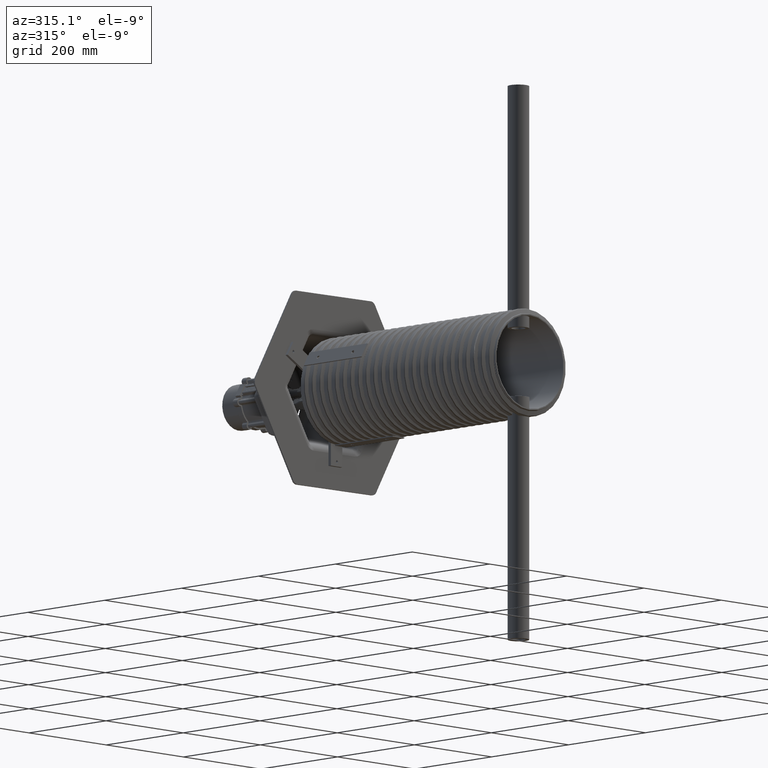
[diagram: clean part render]
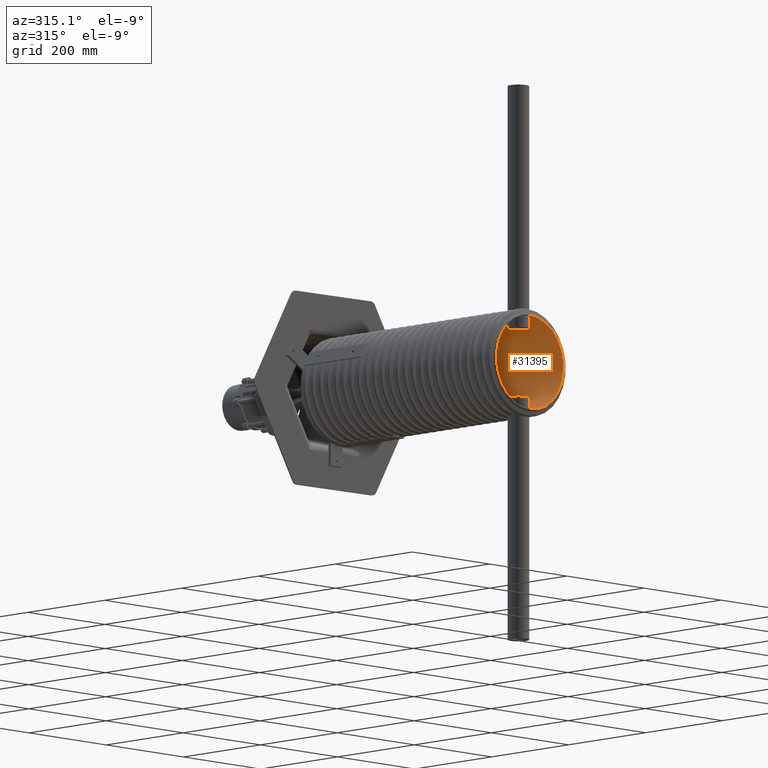
[diagram: same view with one face highlighted and labeled with its STEP entity id]
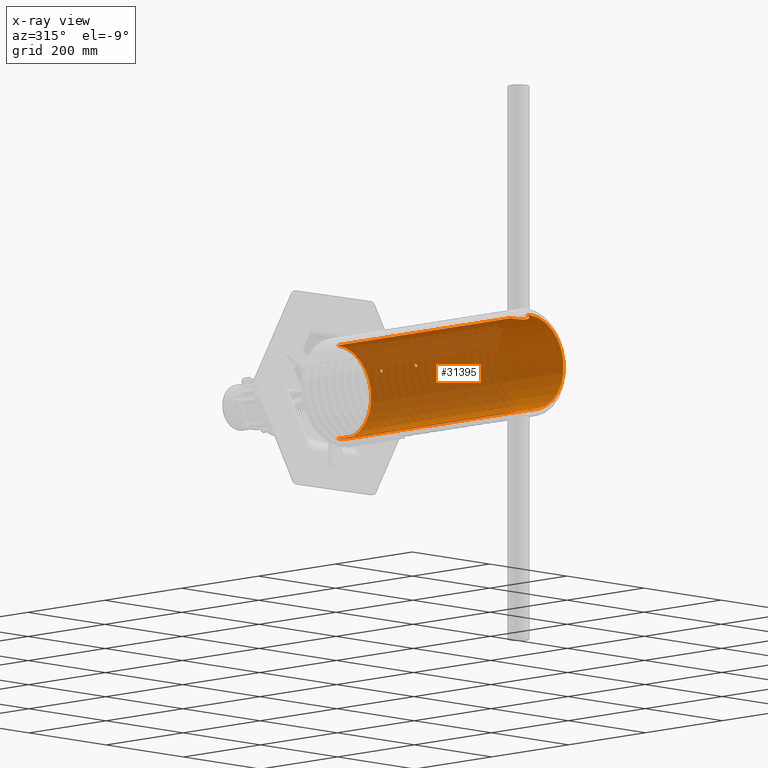
[diagram: x-ray of the same camera — body ghosted, the highlighted face saturated]
A machine part, auxiliary view. The second image highlights one B-rep face of the part: STEP entity #31395.
The next image is the same camera in x-ray: the body ghosted, the highlighted face saturated — about 63% of this face is hidden behind the body in this view.
In plain terms, the highlighted cylindrical surface (partial cylindrical patch) has radius 87 mm, axis along (0, 1, 0).
Its self-contained STEP definition (entity closure, byte-faithful):
#629 = DIRECTION ( 'NONE',  ( -0.0000000000000000000, 1.000000000000000000, -0.0000000000000000000 ) ) ;
#848 = CARTESIAN_POINT ( 'NONE',  ( 76.79940238806720700, -38.00000000000000700, 40.87605402721430200 ) ) ;
#941 = CARTESIAN_POINT ( 'NONE',  ( 20.00000000000000700, -470.0000000000000000, 84.66994744299775300 ) ) ;
#1047 = CARTESIAN_POINT ( 'NONE',  ( 20.00000000000001400, -471.3097727820329500, 84.66994744299775300 ) ) ;
#1083 = ORIENTED_EDGE ( 'NONE', *, *, #26051, .T. ) ;
#1098 = CARTESIAN_POINT ( 'NONE',  ( 19.87258180282035600, -472.6109044968400800, 84.70035518799339500 ) ) ;
#1160 = CARTESIAN_POINT ( 'NONE',  ( 0.0000000000000000000, 0.0000000000000000000, 87.00000000000002800 ) ) ;
#1164 = VERTEX_POINT ( 'NONE', #12173 ) ;
#1184 = CARTESIAN_POINT ( 'NONE',  ( 19.48683228377942800, -474.5494450204614600, 84.78962664538839500 ) ) ;
#1245 = CARTESIAN_POINT ( 'NONE',  ( 19.32495440041246200, -475.1938655345061900, 84.82679073922753300 ) ) ;
#1277 = ORIENTED_EDGE ( 'NONE', *, *, #37150, .T. ) ;
#1296 = CARTESIAN_POINT ( 'NONE',  ( 74.12288359793724600, -129.8289433191464800, 45.55008222552945800 ) ) ;
#1357 = CARTESIAN_POINT ( 'NONE',  ( 18.94318157767786600, -476.4487187474474000, 84.91286216710545900 ) ) ;
#1418 = CARTESIAN_POINT ( 'NONE',  ( 18.72266412666035500, -477.0629929471797900, 84.96191534850493100 ) ) ;
#1464 = CARTESIAN_POINT ( 'NONE',  ( 75.82233604326457100, -130.8472839878834000, 42.66153242702481700 ) ) ;
#1516 = CARTESIAN_POINT ( 'NONE',  ( 18.22357876429281400, -478.2659057817798500, 85.07036139988984800 ) ) ;
#1565 = CARTESIAN_POINT ( 'NONE',  ( 17.94500937893240400, -478.8545435671164200, 85.12975672196815000 ) ) ;
#1613 = CARTESIAN_POINT ( 'NONE',  ( 76.79940238806719300, -128.0000000000000000, 40.87605402721430200 ) ) ;
#1670 = CARTESIAN_POINT ( 'NONE',  ( 17.32928541080693600, -480.0061066625700600, 85.25722672185770500 ) ) ;
#1691 = EDGE_CURVE ( 'NONE', #43861, #23992, #17466, .T. ) ;
#1826 = CARTESIAN_POINT ( 'NONE',  ( 16.99053917262399000, -480.5713675539277600, 85.32561285226178400 ) ) ;
#1833 = B_SPLINE_CURVE_WITH_KNOTS ( 'NONE', 3,
 ( #20343, #41577, #45125, #23936, #2290, #27501, #5935, #31032, #9617, #34559, #13293, #38116, #16908, #41732, #20504, #45262, #24093, #2440, #27643, #6078, #31194, #9757, #34710, #13442, #38282, #17046, #41885, #20665, #45420, #24236, #2598, #27790 ),
 .UNSPECIFIED., .F., .F.,
 ( 4, 2, 2, 2, 2, 2, 2, 2, 2, 2, 2, 2, 2, 2, 2, 4 ),
 ( 0.009380065662061867100, 0.009966186848062500600, 0.01055230803406313400, 0.01113842922006376800, 0.01172455040606439900, 0.01231067159206503300, 0.01289679277806566600, 0.01348291396406630000, 0.01406903515006693200, 0.01465515633606756500, 0.01524127752206819900, 0.01582739870806883200, 0.01641351989406946600, 0.01699964108007009900, 0.01758576226607073300, 0.01875800463807199600 ),
 .UNSPECIFIED. ) ;
#1883 = CARTESIAN_POINT ( 'NONE',  ( 15.89413165341288400, -482.2108768043417500, 85.53906183110785800 ) ) ;
#1914 = CARTESIAN_POINT ( 'NONE',  ( 0.7763860699767505300, -35.09562983045843500, -86.99674659567382700 ) ) ;
#2049 = CARTESIAN_POINT ( 'NONE',  ( 15.06791242405785900, -483.2154688746402900, 85.69028792020151300 ) ) ;
#2071 = CARTESIAN_POINT ( 'NONE',  ( 18.21962737294205300, -461.7249487878594900, 85.07121474615111400 ) ) ;
#2104 = CARTESIAN_POINT ( 'NONE',  ( 1.830979428494086300, -130.3846284622218000, -86.98088549283956200 ) ) ;
#2220 = CARTESIAN_POINT ( 'NONE',  ( 10.02251858750657700, -452.6800260905570200, 86.42273495285059000 ) ) ;
#2256 = CARTESIAN_POINT ( 'NONE',  ( 0.7763860699767515200, -125.0956298304583800, -86.99674659567377000 ) ) ;
#2284 = CARTESIAN_POINT ( 'NONE',  ( 13.68947363335681500, -484.5952376561857600, 85.91749047084744000 ) ) ;
#2290 = CARTESIAN_POINT ( 'NONE',  ( 76.72725056532678400, -37.03336390422353500, 41.01139606618973900 ) ) ;
#2337 = CARTESIAN_POINT ( 'NONE',  ( 13.20663325987711500, -485.0338113588372300, 85.99329881591437200 ) ) ;
#2440 = CARTESIAN_POINT ( 'NONE',  ( 75.24654654386195300, -34.99983603885795700, 43.66916959959585400 ) ) ;
#2479 = ORIENTED_EDGE ( 'NONE', *, *, #3670, .T. ) ;
#2488 = CARTESIAN_POINT ( 'NONE',  ( 12.44619435417209300, -485.6588603546577500, 86.10550445194653000 ) ) ;
#2590 = CARTESIAN_POINT ( 'NONE',  ( 12.18609127885416900, -485.8621227960242100, 86.14273024893560700 ) ) ;
#2598 = CARTESIAN_POINT ( 'NONE',  ( 73.79940238806723600, -37.60362431582526500, 46.07220644992094100 ) ) ;
#2648 = CARTESIAN_POINT ( 'NONE',  ( 11.65896377244182100, -486.2535018997630800, 86.21565611390043700 ) ) ;
#2789 = CARTESIAN_POINT ( 'NONE',  ( 11.39145300411179000, -486.4420625262272900, 86.25143293087305100 ) ) ;
#2896 = CARTESIAN_POINT ( 'NONE',  ( 10.03442699100647300, -487.3498190636772200, 86.42631787680581100 ) ) ;
#3126 = CARTESIAN_POINT ( 'NONE',  ( 8.887061375591693800, -487.9649167705670200, 86.55343207753504900 ) ) ;
#3219 = CARTESIAN_POINT ( 'NONE',  ( 7.071523045145731600, -488.7195909527612800, 86.71425879228559100 ) ) ;
#3317 = CARTESIAN_POINT ( 'NONE',  ( 6.446876492459776600, -488.9438862687932800, 86.76310259039173900 ) ) ;
#3420 = CARTESIAN_POINT ( 'NONE',  ( 5.187658729119729800, -489.3266976067870400, 86.84748922409937700 ) ) ;
#3470 = CARTESIAN_POINT ( 'NONE',  ( 4.552415771729019200, -489.4859548076487400, 86.88317981998778800 ) ) ;
#3522 = CARTESIAN_POINT ( 'NONE',  ( -4.534212954078323500E-017, -490.0000000000000000, 87.00000000000002800 ) ) ;
#3670 = EDGE_CURVE ( 'NONE', #33598, #29870, #28038, .T. ) ;
#3834 = CARTESIAN_POINT ( 'NONE',  ( 1.065442721291840700E-014, -131.0000000000000000, -87.00000000000002800 ) ) ;
#4093 = DIRECTION ( 'NONE',  ( -0.0000000000000000000, 1.000000000000000000, -0.0000000000000000000 ) ) ;
#4314 = B_SPLINE_CURVE_WITH_KNOTS ( 'NONE', 3,
 ( #11746, #11956, #11686, #11637, #11530, #11475, #11366, #11351, #11313, #11303, #11253, #11199, #11158, #11149, #11095, #11040, #10889, #10839, #10831, #10774, #10679, #10673, #10622, #10584, #10571, #10540 ),
 .UNSPECIFIED., .F., .F.,
 ( 4, 2, 2, 2, 2, 2, 2, 2, 2, 2, 2, 2, 4 ),
 ( 0.09410789661966965900, 0.09802708953459228500, 0.09998668599205359800, 0.1019462824495149100, 0.1058654753644375400, 0.1078250718218988500, 0.1097846682793601600, 0.1117442647368214700, 0.1137038611942827900, 0.1176230541092052700, 0.1195826505666665300, 0.1215422470241277800, 0.1254614399390502600 ),
 .UNSPECIFIED. ) ;
#4361 = CARTESIAN_POINT ( 'NONE',  ( 2.630089170235748100, -489.8693313288165400, 86.96969777411382600 ) ) ;
#4550 = CARTESIAN_POINT ( 'NONE',  ( 1.326567216152748000, -490.0000000000000600, 87.00000000000004300 ) ) ;
#4729 = CARTESIAN_POINT ( 'NONE',  ( 0.0000000000000000000, 0.0000000000000000000, 87.00000000000000000 ) ) ;
#4788 = DIRECTION ( 'NONE',  ( -0.0000000000000000000, 1.000000000000000000, -0.0000000000000000000 ) ) ;
#4924 = CARTESIAN_POINT ( 'NONE',  ( 74.33347922500526300, -130.2600676431072800, 45.20567482684608500 ) ) ;
#5078 = CARTESIAN_POINT ( 'NONE',  ( 76.08514325843393100, -130.6030418414441100, 42.19096358836850400 ) ) ;
#5298 = CARTESIAN_POINT ( 'NONE',  ( 1.065442716031716200E-014, -125.0000000000000000, -87.00000000000002800 ) ) ;
#5530 = CARTESIAN_POINT ( 'NONE',  ( 1.329955233623715500, -35.30371981811131100, -86.99002392546769600 ) ) ;
#5568 = CARTESIAN_POINT ( 'NONE',  ( 3.000000000000000900, -128.0000000000000000, -86.94826047713664300 ) ) ;
#5678 = CARTESIAN_POINT ( 'NONE',  ( 17.31739205085583700, -459.9732355937658200, 85.25964811136300600 ) ) ;
#5722 = CARTESIAN_POINT ( 'NONE',  ( 1.328175558697991100, -130.6970630186229700, -86.99004865439181300 ) ) ;
#5854 = CARTESIAN_POINT ( 'NONE',  ( 8.857833680266107700, -452.0654873304653700, 86.54841319088986000 ) ) ;
#5898 = CARTESIAN_POINT ( 'NONE',  ( 1.329955233623707500, -125.3037198181112800, -86.99002392546766800 ) ) ;
#5935 = CARTESIAN_POINT ( 'NONE',  ( 76.61277069364122400, -36.49821063293249800, 41.22493674064099900 ) ) ;
#5970 = LINE ( 'NONE', #33416, #14557 ) ;
#6078 = CARTESIAN_POINT ( 'NONE',  ( 74.95421263033215100, -35.09509054505110700, 44.16902478899425700 ) ) ;
#6155 = EDGE_CURVE ( 'NONE', #33293, #18730, #42826, .T. ) ;
#6293 = CARTESIAN_POINT ( 'NONE',  ( 73.79940238806726400, -128.0000000000000000, 46.07220644992096200 ) ) ;
#6335 = CARTESIAN_POINT ( 'NONE',  ( 73.79940238806725000, -127.6036243158252600, 46.07220644992096200 ) ) ;
#6386 = CARTESIAN_POINT ( 'NONE',  ( 73.84169468340766700, -127.2098632413372600, 46.00463697864077500 ) ) ;
#6459 = CARTESIAN_POINT ( 'NONE',  ( 73.96033536175043800, -126.6685945314221700, 45.81347419145316000 ) ) ;
#6507 = CARTESIAN_POINT ( 'NONE',  ( 74.00964267075109100, -126.4936293912780100, 45.73384765430935100 ) ) ;
#6561 = CARTESIAN_POINT ( 'NONE',  ( 74.12471874090687200, -126.1664020456541100, 45.54709761446144300 ) ) ;
#6599 = CARTESIAN_POINT ( 'NONE',  ( 74.18973372377777800, -126.0155304745128900, 45.44119956019824300 ) ) ;
#6616 = CARTESIAN_POINT ( 'NONE',  ( 74.33413251984855200, -125.7388231767254900, 45.20460098260358000 ) ) ;
#6659 = CARTESIAN_POINT ( 'NONE',  ( 74.41436665575851400, -125.6122360639628500, 45.07248172008696900 ) ) ;
#6697 = CARTESIAN_POINT ( 'NONE',  ( 74.58274914739598700, -125.3949918919166300, 44.79330421839682700 ) ) ;
#6711 = CARTESIAN_POINT ( 'NONE',  ( 74.67139823330761300, -125.3029380678984400, 44.64544082383363100 ) ) ;
#6748 = CARTESIAN_POINT ( 'NONE',  ( 74.85747038605444500, -125.1524743547578400, 44.33274442071717700 ) ) ;
#6808 = CARTESIAN_POINT ( 'NONE',  ( 74.95421263033217900, -125.0950905450511400, 44.16902478899427800 ) ) ;
#6852 = CARTESIAN_POINT ( 'NONE',  ( 75.14811365699012000, -125.0191828146252400, 43.83831378645773900 ) ) ;
#6861 = CARTESIAN_POINT ( 'NONE',  ( 75.24654654386196700, -124.9998360388579400, 43.66916959959588200 ) ) ;
#6914 = CARTESIAN_POINT ( 'NONE',  ( 75.44437575426296400, -125.0001660479804400, 43.32649659671815800 ) ) ;
#6929 = CARTESIAN_POINT ( 'NONE',  ( 75.54115247530934600, -125.0197078249870400, 43.15751435866254600 ) ) ;
#6976 = CARTESIAN_POINT ( 'NONE',  ( 75.73064473570791200, -125.0961914640976700, 42.82413117425846800 ) ) ;
#7026 = CARTESIAN_POINT ( 'NONE',  ( 75.82434590255604700, -125.1541199586312700, 42.65795904007652000 ) ) ;
#7044 = B_SPLINE_CURVE_WITH_KNOTS ( 'NONE', 3,
 ( #37753, #12901, #16508, #41338, #20130, #44887, #23707, #2071, #27279, #5678, #30807, #9388, #34326, #13043, #37898, #16675, #41489, #20272, #45047, #23856, #2220, #27429, #5854, #30951, #9540, #34481, #13204, #38044, #16830, #41654, #20416, #45194 ),
 .UNSPECIFIED., .F., .F.,
 ( 4, 2, 2, 2, 2, 2, 2, 2, 2, 2, 2, 2, 2, 2, 2, 4 ),
 ( 0.03137786550792306300, 0.03333796585246948100, 0.03529806619701590000, 0.03921826688610874400, 0.04117836723065515500, 0.04313846757520157400, 0.04509856791974799200, 0.04607861809202114200, 0.04705866826429428600, 0.05097886895338687300, 0.05293896929793311800, 0.05391901947020624100, 0.05489906964247936300, 0.05881927033157191600, 0.06077937067611817500, 0.06273947102066443300 ),
 .UNSPECIFIED. ) ;
#7091 = CARTESIAN_POINT ( 'NONE',  ( 76.00156117046432800, -125.3047737001057000, 42.34141708383746300 ) ) ;
#7101 = CARTESIAN_POINT ( 'NONE',  ( 76.08520940629190900, -125.3969834340961100, 42.19084642360594000 ) ) ;
#7205 = CARTESIAN_POINT ( 'NONE',  ( 76.24289715199158500, -125.6150706057248800, 41.90521741037056800 ) ) ;
#7247 = CARTESIAN_POINT ( 'NONE',  ( 76.31701063034780900, -125.7417889277396300, 41.77000115104774400 ) ) ;
#7261 = CARTESIAN_POINT ( 'NONE',  ( 76.44935817606007300, -126.0185571830292600, 41.52727708602657200 ) ) ;
#7300 = CARTESIAN_POINT ( 'NONE',  ( 76.50852754800529000, -126.1696861162702400, 41.41807884321074300 ) ) ;
#7352 = CARTESIAN_POINT ( 'NONE',  ( 76.61277069364122400, -126.4982106329325100, 41.22493674064100600 ) ) ;
#7388 = CARTESIAN_POINT ( 'NONE',  ( 76.65666974050581900, -126.6723235719023400, 41.14317161944786200 ) ) ;
#7404 = CARTESIAN_POINT ( 'NONE',  ( 76.72725056532677000, -127.0333639042235300, 41.01139606618975400 ) ) ;
#7453 = CARTESIAN_POINT ( 'NONE',  ( 76.75438500250982100, -127.2229834013205200, 40.96054022181822100 ) ) ;
#7518 = CARTESIAN_POINT ( 'NONE',  ( 76.79940238806719300, -128.0000000000000000, 40.87605402721430200 ) ) ;
#7595 = VECTOR ( 'NONE', #4788, 1000.000000000000000 ) ;
#7608 = EDGE_CURVE ( 'NONE', #18730, #23992, #25013, .T. ) ;
#7729 = CARTESIAN_POINT ( 'NONE',  ( 76.79940238806717900, -127.8042405529167200, 40.87605402721429500 ) ) ;
#7750 = CARTESIAN_POINT ( 'NONE',  ( 1.065442715258197500E-014, 0.0000000000000000000, -87.00000000000002800 ) ) ;
#7950 = DIRECTION ( 'NONE',  ( 0.0000000000000000000, 0.0000000000000000000, 1.000000000000000000 ) ) ;
#8316 = CARTESIAN_POINT ( 'NONE',  ( 76.79048662508650100, -127.6096754009915200, 40.89281888374915000 ) ) ;
#8453 = EDGE_CURVE ( 'NONE', #11673, #12956, #34049, .T. ) ;
#8605 = CARTESIAN_POINT ( 'NONE',  ( 74.58135396072991300, -130.6035503350153700, 44.79563088316530200 ) ) ;
#8613 = B_SPLINE_CURVE_WITH_KNOTS ( 'NONE', 3,
 ( #7518, #7729, #8316, #7453, #7404, #7388, #7352, #7300, #7261, #7247, #7205, #7101, #7091, #7026, #6976, #6929, #6914, #6861, #6852, #6808, #6748, #6711, #6697, #6659, #6616, #6599, #6561, #6507, #6459, #6386, #6335, #6293 ),
 .UNSPECIFIED., .F., .F.,
 ( 4, 2, 2, 2, 2, 2, 2, 2, 2, 2, 2, 2, 2, 2, 2, 4 ),
 ( 0.009380065662061854900, 0.009966186848062483200, 0.01055230803406311000, 0.01113842922006373800, 0.01172455040606436600, 0.01231067159206499500, 0.01289679277806562300, 0.01348291396406625000, 0.01406903515006687800, 0.01465515633606750600, 0.01524127752206813300, 0.01582739870806876300, 0.01641351989406938900, 0.01699964108007001600, 0.01758576226607064300, 0.01875800463807197500 ),
 .UNSPECIFIED. ) ;
#8704 = CARTESIAN_POINT ( 'NONE',  ( 1.065442715258197400E-014, 0.0000000000000000000, -87.00000000000000000 ) ) ;
#8760 = CARTESIAN_POINT ( 'NONE',  ( 76.31515642615116200, -130.2618179307909300, 41.77339499878376500 ) ) ;
#8773 = EDGE_LOOP ( 'NONE', ( #17506, #28040 ) ) ;
#9182 = VERTEX_POINT ( 'NONE', #5298 ) ;
#9220 = CARTESIAN_POINT ( 'NONE',  ( 1.827883023717660000, -35.61312582596917100, -86.98094833108328300 ) ) ;
#9267 = CARTESIAN_POINT ( 'NONE',  ( 3.000000000000000900, -128.1982777829068700, -86.94826047713664300 ) ) ;
#9388 = CARTESIAN_POINT ( 'NONE',  ( 16.25866558600420900, -458.3347395649077500, 85.46807285347264800 ) ) ;
#9424 = CARTESIAN_POINT ( 'NONE',  ( 0.7778577919684781500, -130.9041236656627500, -86.99673819946038100 ) ) ;
#9426 = CARTESIAN_POINT ( 'NONE',  ( 0.1977612686237654200, -124.9999999999999900, -87.00000000000000000 ) ) ;
#9540 = CARTESIAN_POINT ( 'NONE',  ( 7.964475106133751800, -451.6513223082435500, 86.63520648923932300 ) ) ;
#9579 = CARTESIAN_POINT ( 'NONE',  ( 1.827883023717659100, -125.6131258259691500, -86.98094833108326900 ) ) ;
#9617 = CARTESIAN_POINT ( 'NONE',  ( 76.44935817606005900, -36.01855718302925200, 41.52727708602656500 ) ) ;
#9757 = CARTESIAN_POINT ( 'NONE',  ( 74.67139823330758500, -35.30293806789842400, 44.64544082383361700 ) ) ;
#10302 = CARTESIAN_POINT ( 'NONE',  ( 0.0000000000000000000, 0.0000000000000000000, 0.0000000000000000000 ) ) ;
#10414 = DIRECTION ( 'NONE',  ( -0.0000000000000000000, 1.000000000000000000, -0.0000000000000000000 ) ) ;
#10540 = CARTESIAN_POINT ( 'NONE',  ( 20.00000000000000700, -470.0000000000000000, -84.66994744299775300 ) ) ;
#10571 = CARTESIAN_POINT ( 'NONE',  ( 20.00000000000001100, -468.6744326243409700, -84.66994744299773900 ) ) ;
#10584 = CARTESIAN_POINT ( 'NONE',  ( 19.86949840125884100, -467.3672485864288400, -84.70108058092807800 ) ) ;
#10622 = CARTESIAN_POINT ( 'NONE',  ( 19.48279992951975700, -465.4335359864411400, -84.79055378684546400 ) ) ;
#10673 = CARTESIAN_POINT ( 'NONE',  ( 19.32076070964772900, -464.7902530329332100, -84.82774908021033900 ) ) ;
#10679 = CARTESIAN_POINT ( 'NONE',  ( 18.93640500187908100, -463.5311652158106300, -84.91437672160941500 ) ) ;
#10728 = DIRECTION ( 'NONE',  ( 0.0000000000000000000, 0.0000000000000000000, 1.000000000000000000 ) ) ;
#10774 = CARTESIAN_POINT ( 'NONE',  ( 18.71472867607998600, -462.9159941273674100, -84.96366590386655600 ) ) ;
#10785 = DIRECTION ( 'NONE',  ( -0.0000000000000000000, 1.000000000000000000, -0.0000000000000000000 ) ) ;
#10831 = CARTESIAN_POINT ( 'NONE',  ( 17.96389706303824600, -461.1120735376746300, -85.12673361101745700 ) ) ;
#10839 = CARTESIAN_POINT ( 'NONE',  ( 17.34978779493604200, -459.9645217099201800, -85.25572906038134100 ) ) ;
#10889 = CARTESIAN_POINT ( 'NONE',  ( 16.25341007550205000, -458.3270333172083600, -85.46908961404811600 ) ) ;
#10944 = DIRECTION ( 'NONE',  ( 0.0000000000000000000, 0.0000000000000000000, 1.000000000000000000 ) ) ;
#11035 = FACE_BOUND ( 'NONE', #16515, .T. ) ;
#11040 = CARTESIAN_POINT ( 'NONE',  ( 15.86064401229919700, -457.7989936424120300, -85.54307023905913400 ) ) ;
#11095 = CARTESIAN_POINT ( 'NONE',  ( 15.03283226935481300, -456.7924817401515200, -85.69242001700577300 ) ) ;
#11149 = CARTESIAN_POINT ( 'NONE',  ( 14.59621513080994100, -456.3116166269289200, -85.76810036495584200 ) ) ;
#11158 = CARTESIAN_POINT ( 'NONE',  ( 13.67791496934002800, -455.3939746130386700, -85.91932948091208300 ) ) ;
#11199 = CARTESIAN_POINT ( 'NONE',  ( 13.19623296353511500, -454.9571973058318700, -85.99488191319461800 ) ) ;
#11253 = CARTESIAN_POINT ( 'NONE',  ( 12.18679603846159400, -454.1283750157554700, -86.14373036970894800 ) ) ;
#11303 = CARTESIAN_POINT ( 'NONE',  ( 11.65606949360919700, -453.7345425611923700, -86.21738566143258700 ) ) ;
#11313 = CARTESIAN_POINT ( 'NONE',  ( 10.02216370289576700, -452.6427974129937900, -86.42778731426926700 ) ) ;
#11351 = CARTESIAN_POINT ( 'NONE',  ( 8.874314966135184300, -452.0291081650137200, -86.55468516250442700 ) ) ;
#11366 = CARTESIAN_POINT ( 'NONE',  ( 7.064594847878960400, -451.2778712614974700, -86.71480984849088700 ) ) ;
#11475 = CARTESIAN_POINT ( 'NONE',  ( 6.445498046999366800, -451.0555506934212000, -86.76322415397461900 ) ) ;
#11530 = CARTESIAN_POINT ( 'NONE',  ( 5.181032938413754800, -450.6714329994567800, -86.84790388004643100 ) ) ;
#11637 = CARTESIAN_POINT ( 'NONE',  ( 4.544154123508341100, -450.5120976078406400, -86.88361688943845700 ) ) ;
#11640 = EDGE_CURVE ( 'NONE', #39967, #32580, #30247, .T. ) ;
#11673 = VERTEX_POINT ( 'NONE', #33079 ) ;
#11686 = CARTESIAN_POINT ( 'NONE',  ( 2.619961150343538000, -450.1292549473155300, -86.97002176340042500 ) ) ;
#11746 = CARTESIAN_POINT ( 'NONE',  ( 1.063745155831758400E-014, -449.9999999999999400, -87.00000000000002800 ) ) ;
#11956 = CARTESIAN_POINT ( 'NONE',  ( 1.319214830092695800, -450.0000000000000600, -87.00000000000001400 ) ) ;
#12127 = DIRECTION ( 'NONE',  ( -0.0000000000000000000, 1.000000000000000000, -0.0000000000000000000 ) ) ;
#12173 = CARTESIAN_POINT ( 'NONE',  ( 1.063745155831758400E-014, -449.9999999999999400, -87.00000000000002800 ) ) ;
#12306 = CARTESIAN_POINT ( 'NONE',  ( 74.85580443909081800, -130.8463173335569800, 44.33555159283619000 ) ) ;
#12442 = CARTESIAN_POINT ( 'NONE',  ( 76.50856317009625200, -129.8299900628122400, 41.41801024803085300 ) ) ;
#12702 = EDGE_CURVE ( 'NONE', #30632, #21186, #8613, .T. ) ;
#12899 = CARTESIAN_POINT ( 'NONE',  ( 2.259108242737366100, -36.01638582184538300, -86.97077440326684400 ) ) ;
#12901 = CARTESIAN_POINT ( 'NONE',  ( 20.00000000000000400, -469.3454529708039900, 84.66994744299775300 ) ) ;
#12940 = CARTESIAN_POINT ( 'NONE',  ( 2.904276259442625900, -128.7767963207786900, -86.95151887674923300 ) ) ;
#12956 = VERTEX_POINT ( 'NONE', #17563 ) ;
#13043 = CARTESIAN_POINT ( 'NONE',  ( 15.25032348079424000, -457.0565085421382600, 85.65320688543806700 ) ) ;
#13087 = CARTESIAN_POINT ( 'NONE',  ( 0.1957350792040912500, -131.0000000000000300, -87.00000000000002800 ) ) ;
#13135 = AXIS2_PLACEMENT_3D ( 'NONE', #29289, #629, #7950 ) ;
#13204 = CARTESIAN_POINT ( 'NONE',  ( 5.208106433095106300, -450.6454886308125100, 86.85352207301042400 ) ) ;
#13251 = CARTESIAN_POINT ( 'NONE',  ( 2.259108242737365700, -126.0163858218453500, -86.97077440326683000 ) ) ;
#13293 = CARTESIAN_POINT ( 'NONE',  ( 76.24289715199158500, -35.61507060572486700, 41.90521741037056800 ) ) ;
#13442 = CARTESIAN_POINT ( 'NONE',  ( 74.41436665575852800, -35.61223606396285400, 45.07248172008699100 ) ) ;
#13669 = EDGE_CURVE ( 'NONE', #9182, #32840, #17062, .T. ) ;
#13939 = DIRECTION ( 'NONE',  ( -0.0000000000000000000, 1.000000000000000000, -0.0000000000000000000 ) ) ;
#14557 = VECTOR ( 'NONE', #12127, 1000.000000000000000 ) ;
#14826 = CARTESIAN_POINT ( 'NONE',  ( 1.065442721543171800E-014, -490.0000000000000000, -87.00000000000002800 ) ) ;
#15611 = CARTESIAN_POINT ( 'NONE',  ( 73.79940238806726400, -128.0000000000000000, 46.07220644992096200 ) ) ;
#15693 = EDGE_CURVE ( 'NONE', #39278, #32840, #22846, .T. ) ;
#15777 = CARTESIAN_POINT ( 'NONE',  ( 73.80971652638993400, -128.3931496600908400, 46.05569672196235600 ) ) ;
#15928 = CARTESIAN_POINT ( 'NONE',  ( 75.14791676317973700, -130.9808994648600400, 43.83865996970049400 ) ) ;
#16082 = CARTESIAN_POINT ( 'NONE',  ( 76.65624155491612200, -129.3297224775155900, 41.14397046377807500 ) ) ;
#16505 = CARTESIAN_POINT ( 'NONE',  ( 2.602268058680075900, -36.49435984759050200, -86.96114194050473100 ) ) ;
#16508 = CARTESIAN_POINT ( 'NONE',  ( 19.96795115164842500, -468.6887333618999500, 84.67753785502829100 ) ) ;
#16515 = EDGE_LOOP ( 'NONE', ( #24451, #45209 ) ) ;
#16554 = CARTESIAN_POINT ( 'NONE',  ( 2.695869573999901000, -129.3307810247008800, -86.95825417603235500 ) ) ;
#16560 = CARTESIAN_POINT ( 'NONE',  ( 1.309825171448685900, -490.0000000000001700, -87.00000000000004300 ) ) ;
#16675 = CARTESIAN_POINT ( 'NONE',  ( 14.59634612136194900, -456.3232248415379800, 85.76710691855824100 ) ) ;
#16716 = CARTESIAN_POINT ( 'NONE',  ( 2.611004145624531000, -489.8725714256665900, -86.97043360171856800 ) ) ;
#16830 = CARTESIAN_POINT ( 'NONE',  ( 2.621006421891445700, -450.1615254136343100, 86.96298694073020400 ) ) ;
#16865 = CARTESIAN_POINT ( 'NONE',  ( 2.602268058680082600, -126.4943598475905600, -86.96114194050471700 ) ) ;
#16872 = CARTESIAN_POINT ( 'NONE',  ( 4.549602195806199000, -489.4867962807920800, -86.88336742863832300 ) ) ;
#16908 = CARTESIAN_POINT ( 'NONE',  ( 76.00156117046429900, -35.30477370010565600, 42.34141708383744900 ) ) ;
#17018 = CARTESIAN_POINT ( 'NONE',  ( 5.194072442968593600, -489.3249011560927800, -86.84709049168269200 ) ) ;
#17046 = CARTESIAN_POINT ( 'NONE',  ( 74.18973372377777800, -36.01553047451285000, 45.44119956019826400 ) ) ;
#17062 = LINE ( 'NONE', #7750, #25454 ) ;
#17328 = CARTESIAN_POINT ( 'NONE',  ( 6.449053673449365800, -488.9430699716949100, -86.76292538942135500 ) ) ;
#17466 = B_SPLINE_CURVE_WITH_KNOTS ( 'NONE', 3,
 ( #27159, #28216, #28387, #27327, #27470, #25139, #24981, #24816, #24513, #24062, #23755, #21550, #21407, #21090, #20925, #20781, #20625, #20466, #20178, #17945, #17796, #17621, #17328, #17018, #16872, #16716, #16560, #14826 ),
 .UNSPECIFIED., .F., .F.,
 ( 4, 2, 2, 2, 2, 2, 2, 2, 2, 2, 2, 2, 2, 4 ),
 ( 0.0000000000000000000, 0.003922192643568727500, 0.005883288965353091300, 0.007844385287137455000, 0.01176657793070633700, 0.01274712609159859400, 0.01372767425249085300, 0.01568877057427550000, 0.01961096321784479600, 0.02157205953962944300, 0.02353315586141409600, 0.02549425218319874300, 0.02745534850498339300, 0.03137754114855269300 ),
 .UNSPECIFIED. ) ;
#17506 = ORIENTED_EDGE ( 'NONE', *, *, #42791, .T. ) ;
#17563 = CARTESIAN_POINT ( 'NONE',  ( 20.00000000000000700, -470.0000000000000000, 84.66994744299775300 ) ) ;
#17621 = CARTESIAN_POINT ( 'NONE',  ( 7.063398055590781200, -488.7225141374667600, -86.71489532539016000 ) ) ;
#17750 = VECTOR ( 'NONE', #23980, 1000.000000000000000 ) ;
#17792 = CARTESIAN_POINT ( 'NONE',  ( -8.690192706110534300E-021, -449.9999999999999400, 87.00000000000002800 ) ) ;
#17796 = CARTESIAN_POINT ( 'NONE',  ( 8.266448919114344200, -488.2233353145641700, -86.60848968578527300 ) ) ;
#17853 = ORIENTED_EDGE ( 'NONE', *, *, #8453, .T. ) ;
#17931 = ORIENTED_EDGE ( 'NONE', *, *, #23284, .T. ) ;
#17945 = CARTESIAN_POINT ( 'NONE',  ( 8.855154533623361200, -487.9447108671516800, -86.55011135078153500 ) ) ;
#18730 = VERTEX_POINT ( 'NONE', #19074 ) ;
#19044 = EDGE_CURVE ( 'NONE', #1164, #43861, #4314, .T. ) ;
#19074 = CARTESIAN_POINT ( 'NONE',  ( 1.065442715258197800E-014, -500.0000000000000000, -87.00000000000004300 ) ) ;
#19295 = ORIENTED_EDGE ( 'NONE', *, *, #15693, .T. ) ;
#19356 = CARTESIAN_POINT ( 'NONE',  ( 73.88058512205020600, -128.9671681103031300, 45.94197230440191500 ) ) ;
#19512 = CARTESIAN_POINT ( 'NONE',  ( 75.44152265598053500, -131.0000693487146500, 43.33145454215289800 ) ) ;
#19670 = CARTESIAN_POINT ( 'NONE',  ( 76.75408782920408200, -128.7790907283381600, 40.96109707243764600 ) ) ;
#19954 = CARTESIAN_POINT ( 'NONE',  ( 0.1977612686237695300, -34.99999999999999300, -87.00000000000002800 ) ) ;
#20126 = CARTESIAN_POINT ( 'NONE',  ( 2.920420247024601700, -37.21027343552858500, -86.95109888176494900 ) ) ;
#20130 = CARTESIAN_POINT ( 'NONE',  ( 19.73987874270154900, -466.7188776825973400, 84.73107198613335800 ) ) ;
#20167 = CARTESIAN_POINT ( 'NONE',  ( 2.385816412841610800, -129.8293007002560300, -86.96734878139427800 ) ) ;
#20178 = CARTESIAN_POINT ( 'NONE',  ( 10.00683806547855800, -487.3288661444223100, -86.42452619817085200 ) ) ;
#20272 = CARTESIAN_POINT ( 'NONE',  ( 13.20913392388668600, -454.9255474114411300, 85.99652858895753100 ) ) ;
#20343 = CARTESIAN_POINT ( 'NONE',  ( 76.79940238806720700, -38.00000000000000700, 40.87605402721430200 ) ) ;
#20416 = CARTESIAN_POINT ( 'NONE',  ( 0.6537392626109120900, -449.9999999999998900, 87.00000000000001400 ) ) ;
#20459 = CARTESIAN_POINT ( 'NONE',  ( 2.920420247024597700, -127.2102734355285600, -86.95109888176496300 ) ) ;
#20466 = CARTESIAN_POINT ( 'NONE',  ( 10.57214535552478400, -486.9900586151105700, -86.35701146036362300 ) ) ;
#20504 = CARTESIAN_POINT ( 'NONE',  ( 75.73064473570791200, -35.09619146409765000, 42.82413117425846800 ) ) ;
#20625 = CARTESIAN_POINT ( 'NONE',  ( 12.21181933582942800, -485.8934220721031900, -86.14572660117225700 ) ) ;
#20665 = CARTESIAN_POINT ( 'NONE',  ( 74.00964267075103500, -36.49362939127797000, 45.73384765430934400 ) ) ;
#20781 = CARTESIAN_POINT ( 'NONE',  ( 13.21641345727042000, -485.0670808111260000, -85.99532151259552400 ) ) ;
#20925 = CARTESIAN_POINT ( 'NONE',  ( 14.59605997566877800, -483.6885959980310800, -85.76813079383703100 ) ) ;
#20975 = CARTESIAN_POINT ( 'NONE',  ( 0.0000000000000000000, -500.0000000000000000, 0.0000000000000000000 ) ) ;
#21090 = CARTESIAN_POINT ( 'NONE',  ( 15.03457257848562600, -483.2057629161959100, -85.69212832042096300 ) ) ;
#21186 = VERTEX_POINT ( 'NONE', #31914 ) ;
#21308 = VERTEX_POINT ( 'NONE', #3834 ) ;
#21407 = CARTESIAN_POINT ( 'NONE',  ( 15.65950850238442800, -482.4453778636038200, -85.57934681124331200 ) ) ;
#21550 = CARTESIAN_POINT ( 'NONE',  ( 15.86273847517259700, -482.1852893192017900, -85.54187958686931400 ) ) ;
#22247 = CARTESIAN_POINT ( 'NONE',  ( 1.065442721292945100E-014, -41.00000000000000000, -87.00000000000002800 ) ) ;
#22846 = B_SPLINE_CURVE_WITH_KNOTS ( 'NONE', 3,
 ( #42852, #42886, #42603, #42591, #42558, #42553, #42501, #42460, #42451, #42415, #42406, #42354, #42311, #42303, #42266, #42261, #42159, #42144 ),
 .UNSPECIFIED., .F., .F.,
 ( 4, 2, 2, 2, 2, 2, 2, 2, 4 ),
 ( 0.0000000000000000000, 0.0005863871771897364700, 0.001172774354379472900, 0.001759161531569209400, 0.002345548708758945900, 0.002931935885948682600, 0.003518323063138418800, 0.004104710240328155100, 0.004691097417517891800 ),
 .UNSPECIFIED. ) ;
#22980 = CARTESIAN_POINT ( 'NONE',  ( 74.00859791401364900, -129.5028216664077800, 45.73553649436839700 ) ) ;
#23129 = CARTESIAN_POINT ( 'NONE',  ( 75.73046701392281900, -130.9039507468424100, 42.82444843619278200 ) ) ;
#23273 = CARTESIAN_POINT ( 'NONE',  ( 76.79940238806722200, -128.1958038405141700, 40.87605402721430900 ) ) ;
#23284 = EDGE_CURVE ( 'NONE', #9182, #29329, #39661, .T. ) ;
#23413 = CARTESIAN_POINT ( 'NONE',  ( 1.065442716048124500E-014, -34.99999999999999300, -87.00000000000002800 ) ) ;
#23420 = DIRECTION ( 'NONE',  ( -0.0000000000000000000, 1.000000000000000000, -0.0000000000000000000 ) ) ;
#23425 = VERTEX_POINT ( 'NONE', #17792 ) ;
#23571 = CARTESIAN_POINT ( 'NONE',  ( 0.3932834549787774200, -35.01948502177612700, -86.99932196106803400 ) ) ;
#23704 = CARTESIAN_POINT ( 'NONE',  ( 3.000000000000005800, -38.00000000000000000, -86.94826047713664300 ) ) ;
#23707 = CARTESIAN_POINT ( 'NONE',  ( 18.97504875104232600, -463.5445603104660700, 84.90708524542586100 ) ) ;
#23748 = CARTESIAN_POINT ( 'NONE',  ( 1.982091530921929800, -130.2604498871992300, -86.97752869867736100 ) ) ;
#23755 = CARTESIAN_POINT ( 'NONE',  ( 16.25406868726553400, -481.6581730487254200, -85.46838530296351200 ) ) ;
#23856 = CARTESIAN_POINT ( 'NONE',  ( 10.58227694886701200, -453.0165221701281600, 86.35573235733625100 ) ) ;
#23894 = CARTESIAN_POINT ( 'NONE',  ( 0.3932834549787793700, -125.0194850217761500, -86.99932196106804800 ) ) ;
#23936 = CARTESIAN_POINT ( 'NONE',  ( 76.75438500250986400, -37.22298340132054800, 40.96054022181824200 ) ) ;
#23980 = DIRECTION ( 'NONE',  ( -0.0000000000000000000, 1.000000000000000000, -0.0000000000000000000 ) ) ;
#23992 = VERTEX_POINT ( 'NONE', #42835 ) ;
#24054 = CARTESIAN_POINT ( 'NONE',  ( 3.000000000000000900, -128.0000000000000000, -86.94826047713664300 ) ) ;
#24062 = CARTESIAN_POINT ( 'NONE',  ( 16.44260274255838200, -481.3906724499241200, -85.43228321057135600 ) ) ;
#24093 = CARTESIAN_POINT ( 'NONE',  ( 75.44437575426293600, -35.00016604798047100, 43.32649659671813700 ) ) ;
#24236 = CARTESIAN_POINT ( 'NONE',  ( 73.84169468340768100, -37.20986324133727400, 46.00463697864076100 ) ) ;
#24451 = ORIENTED_EDGE ( 'NONE', *, *, #11640, .T. ) ;
#24513 = CARTESIAN_POINT ( 'NONE',  ( 17.35022074853515400, -480.0337182018358200, -85.25559824616101400 ) ) ;
#24752 = CARTESIAN_POINT ( 'NONE',  ( 1.065442715258197500E-014, 0.0000000000000000000, -87.00000000000002800 ) ) ;
#24816 = CARTESIAN_POINT ( 'NONE',  ( 17.96519173220099600, -478.8864792546717100, -85.12647563948519300 ) ) ;
#24981 = CARTESIAN_POINT ( 'NONE',  ( 18.71972115362246200, -477.0711701160582300, -84.96256988888856700 ) ) ;
#25013 = LINE ( 'NONE', #24752, #17750 ) ;
#25139 = CARTESIAN_POINT ( 'NONE',  ( 18.94397712402648200, -476.4466039719452500, -84.91268586013802600 ) ) ;
#25454 = VECTOR ( 'NONE', #10414, 1000.000000000000000 ) ;
#25727 = CARTESIAN_POINT ( 'NONE',  ( 0.0000000000000000000, 0.0000000000000000000, 87.00000000000002800 ) ) ;
#25854 = VECTOR ( 'NONE', #23420, 1000.000000000000000 ) ;
#26051 = EDGE_CURVE ( 'NONE', #23425, #33598, #34988, .T. ) ;
#26187 = EDGE_CURVE ( 'NONE', #29329, #21308, #32247, .T. ) ;
#26275 = VECTOR ( 'NONE', #4093, 1000.000000000000000 ) ;
#26529 = CARTESIAN_POINT ( 'NONE',  ( 74.18921739149865900, -129.9833362210781900, 45.44204213150846500 ) ) ;
#26690 = CARTESIAN_POINT ( 'NONE',  ( 75.99981041618447400, -130.6970129253574000, 42.34456055721732100 ) ) ;
#27114 = CARTESIAN_POINT ( 'NONE',  ( 0.9664296006202920400, -35.15312073144402700, -86.99482201432405800 ) ) ;
#27159 = CARTESIAN_POINT ( 'NONE',  ( 20.00000000000000700, -470.0000000000000000, -84.66994744299775300 ) ) ;
#27191 = ORIENTED_EDGE ( 'NONE', *, *, #1691, .T. ) ;
#27279 = CARTESIAN_POINT ( 'NONE',  ( 17.93568807765784700, -461.1264908248124400, 85.13172591165675800 ) ) ;
#27322 = CARTESIAN_POINT ( 'NONE',  ( 1.502852007445169000, -130.6039152087049600, -86.98717355236777800 ) ) ;
#27327 = CARTESIAN_POINT ( 'NONE',  ( 19.48598368835555700, -474.5522868387950000, -84.78982039278010100 ) ) ;
#27429 = CARTESIAN_POINT ( 'NONE',  ( 9.153048669654680200, -452.2143374085724200, 86.51766697584275800 ) ) ;
#27464 = CARTESIAN_POINT ( 'NONE',  ( 0.9664296006202856000, -125.1531207314440200, -86.99482201432405800 ) ) ;
#27470 = CARTESIAN_POINT ( 'NONE',  ( 19.32674222794570400, -475.1874856049225900, -84.82638459885380700 ) ) ;
#27501 = CARTESIAN_POINT ( 'NONE',  ( 76.65666974050583300, -36.67232357190236100, 41.14317161944785500 ) ) ;
#27643 = CARTESIAN_POINT ( 'NONE',  ( 75.14811365699012000, -35.01918281462521100, 43.83831378645773900 ) ) ;
#27734 = ORIENTED_EDGE ( 'NONE', *, *, #39660, .F. ) ;
#27790 = CARTESIAN_POINT ( 'NONE',  ( 73.79940238806725000, -38.00000000000000700, 46.07220644992096200 ) ) ;
#27962 = EDGE_CURVE ( 'NONE', #12956, #23425, #7044, .T. ) ;
#28038 = CIRCLE ( 'NONE', #34203, 87.00000000000000000 ) ;
#28040 = ORIENTED_EDGE ( 'NONE', *, *, #12702, .T. ) ;
#28216 = CARTESIAN_POINT ( 'NONE',  ( 20.00000000000001400, -471.3265819576192300, -84.66994744299776700 ) ) ;
#28387 = CARTESIAN_POINT ( 'NONE',  ( 19.86932935718193600, -472.6300672915212400, -84.70111310406073800 ) ) ;
#28952 = FACE_BOUND ( 'NONE', #8773, .T. ) ;
#29289 = CARTESIAN_POINT ( 'NONE',  ( 0.0000000000000000000, 0.0000000000000000000, 0.0000000000000000000 ) ) ;
#29329 = VERTEX_POINT ( 'NONE', #41039 ) ;
#29870 = VERTEX_POINT ( 'NONE', #8704 ) ;
#29904 = CARTESIAN_POINT ( 'NONE',  ( 1.065442716048124500E-014, -34.99999999999999300, -87.00000000000002800 ) ) ;
#29937 = CARTESIAN_POINT ( 'NONE',  ( 73.79940238806725000, -128.1982327862185700, 46.07220644992094800 ) ) ;
#29979 = ORIENTED_EDGE ( 'NONE', *, *, #19044, .T. ) ;
#30080 = CARTESIAN_POINT ( 'NONE',  ( 74.41191192994477900, -130.3842467563464700, 45.07653788576293200 ) ) ;
#30241 = CARTESIAN_POINT ( 'NONE',  ( 76.24230152971249200, -130.3858190896615400, 41.90629893731785000 ) ) ;
#30247 = B_SPLINE_CURVE_WITH_KNOTS ( 'NONE', 3,
 ( #35303, #35370, #35673, #35225, #35213, #35162, #35126, #35074, #35035, #35022, #34970, #34923, #34911, #34861, #34848, #34804, #34765, #34711, #34627, #34611, #34560, #34552, #34463, #34452, #34404, #34353, #34310, #34293, #34248, #34237, #34197, #34104, #34093, #33995 ),
 .UNSPECIFIED., .F., .F.,
 ( 4, 2, 2, 2, 2, 2, 2, 2, 2, 2, 2, 2, 2, 2, 2, 2, 4 ),
 ( 0.0000000000000000000, 0.0005862541038788666900, 0.001172508207757733400, 0.001758762311636600100, 0.002345016415515466800, 0.002931270519394333700, 0.003517524623273200100, 0.004103778727152066600, 0.004690032831030933500, 0.005276286934909800400, 0.005862541038788667300, 0.006448795142667533400, 0.007035049246546400300, 0.007621303350425267200, 0.008207557454304133200, 0.008793811558183000200, 0.009380065662061867100 ),
 .UNSPECIFIED. ) ;
#30278 = ORIENTED_EDGE ( 'NONE', *, *, #26187, .T. ) ;
#30632 = VERTEX_POINT ( 'NONE', #41579 ) ;
#30665 = CARTESIAN_POINT ( 'NONE',  ( 1.502188651247657200, -35.39581991269549400, -86.98718272354292900 ) ) ;
#30807 = CARTESIAN_POINT ( 'NONE',  ( 16.98180350253650800, -459.4150645983413600, 85.32733462217871100 ) ) ;
#30846 = CARTESIAN_POINT ( 'NONE',  ( 0.9670133609606378400, -130.8465917165744100, -86.99481306588286600 ) ) ;
#30951 = CARTESIAN_POINT ( 'NONE',  ( 8.263927343287925000, -451.7841973257882800, 86.60713912971094400 ) ) ;
#30994 = CARTESIAN_POINT ( 'NONE',  ( 1.502188651247658100, -125.3958199126954700, -86.98718272354290100 ) ) ;
#31032 = CARTESIAN_POINT ( 'NONE',  ( 76.50852754800526200, -36.16968611627021300, 41.41807884321073600 ) ) ;
#31036 = B_SPLINE_CURVE_WITH_KNOTS ( 'NONE', 3,
 ( #23413, #19954, #23571, #1914, #27114, #5530, #30665, #9220, #34171, #12899, #37751, #16505, #41337, #20126, #44885, #23704 ),
 .UNSPECIFIED., .F., .F.,
 ( 4, 2, 2, 2, 2, 2, 2, 4 ),
 ( 0.01407150590727147300, 0.01465731824862154400, 0.01524313058997161700, 0.01582894293132168900, 0.01641475527267176000, 0.01700056761402183500, 0.01758637995537190600, 0.01875800463807203100 ),
 .UNSPECIFIED. ) ;
#31194 = CARTESIAN_POINT ( 'NONE',  ( 74.85747038605437400, -35.15247435475782100, 44.33274442071719100 ) ) ;
#31395 = ADVANCED_FACE ( 'NONE', ( #39436, #11035, #28952 ), #37197, .F. ) ;
#31448 = VERTEX_POINT ( 'NONE', #29904 ) ;
#31613 = ORIENTED_EDGE ( 'NONE', *, *, #6155, .F. ) ;
#31914 = CARTESIAN_POINT ( 'NONE',  ( 73.79940238806726400, -128.0000000000000000, 46.07220644992096200 ) ) ;
#32247 = B_SPLINE_CURVE_WITH_KNOTS ( 'NONE', 3,
 ( #5568, #9267, #34214, #12940, #37799, #16554, #41377, #20167, #44928, #23748, #2104, #27322, #5722, #30846, #9424, #34367, #13087, #37937 ),
 .UNSPECIFIED., .F., .F.,
 ( 4, 2, 2, 2, 2, 2, 2, 2, 4 ),
 ( 0.0000000000000000000, 0.0005863871771897360400, 0.001172774354379472100, 0.001759161531569208100, 0.002345548708758944100, 0.002931935885948680000, 0.003518323063138416200, 0.004104710240328152500, 0.004691097417517888300 ),
 .UNSPECIFIED. ) ;
#32580 = VERTEX_POINT ( 'NONE', #848 ) ;
#32840 = VERTEX_POINT ( 'NONE', #22247 ) ;
#33079 = CARTESIAN_POINT ( 'NONE',  ( -4.534212954078323500E-017, -490.0000000000000000, 87.00000000000002800 ) ) ;
#33293 = VERTEX_POINT ( 'NONE', #35275 ) ;
#33416 = CARTESIAN_POINT ( 'NONE',  ( 1.065442715258197500E-014, 0.0000000000000000000, -87.00000000000002800 ) ) ;
#33583 = CARTESIAN_POINT ( 'NONE',  ( 74.67115675448698700, -130.6967263988083500, 44.64583902460869800 ) ) ;
#33598 = VERTEX_POINT ( 'NONE', #4729 ) ;
#33743 = CARTESIAN_POINT ( 'NONE',  ( 76.44930644313291200, -129.9818178777206000, 41.52737861262482300 ) ) ;
#33995 = CARTESIAN_POINT ( 'NONE',  ( 76.79940238806720700, -38.00000000000000700, 40.87605402721430200 ) ) ;
#34049 = B_SPLINE_CURVE_WITH_KNOTS ( 'NONE', 3,
 ( #3522, #4550, #4361, #3470, #3420, #3317, #3219, #3126, #2896, #2789, #2648, #2590, #2488, #2337, #2284, #2049, #1883, #1826, #1670, #1565, #1516, #1418, #1357, #1245, #1184, #1098, #1047, #941 ),
 .UNSPECIFIED., .F., .F.,
 ( 4, 2, 2, 2, 2, 2, 2, 2, 2, 2, 2, 2, 2, 4 ),
 ( 4.404206807302116300E-020, 0.003922233188490520700, 0.005883349782735764600, 0.007844466376981010200, 0.01176669956547155900, 0.01274725786259414900, 0.01372781615971673500, 0.01568893275396180900, 0.01961116594245207500, 0.02157228253669721300, 0.02353339913094235400, 0.02549451572518749200, 0.02745563231943262700, 0.03137786550792306300 ),
 .UNSPECIFIED. ) ;
#34093 = CARTESIAN_POINT ( 'NONE',  ( 76.79940238806719300, -38.19580384051417400, 40.87605402721430200 ) ) ;
#34104 = CARTESIAN_POINT ( 'NONE',  ( 76.79018374591203200, -38.39465942369516700, 40.89338763345374200 ) ) ;
#34171 = CARTESIAN_POINT ( 'NONE',  ( 1.982276411353747700, -35.73971782974548000, -86.97752439903841500 ) ) ;
#34197 = CARTESIAN_POINT ( 'NONE',  ( 76.75408782920411000, -38.77909072833811900, 40.96109707243762400 ) ) ;
#34203 = AXIS2_PLACEMENT_3D ( 'NONE', #10302, #10785, #10944 ) ;
#34214 = CARTESIAN_POINT ( 'NONE',  ( 2.980536338121446200, -128.3932381622821000, -86.94893822642106300 ) ) ;
#34237 = CARTESIAN_POINT ( 'NONE',  ( 76.72737807539502300, -38.96612747577910300, 41.01115858550306100 ) ) ;
#34248 = CARTESIAN_POINT ( 'NONE',  ( 76.65624155491616400, -39.32972247751556700, 41.14397046377807500 ) ) ;
#34254 = B_SPLINE_CURVE_WITH_KNOTS ( 'NONE', 3,
 ( #15611, #29937, #15777, #40584, #19356, #44133, #22980, #1296, #26529, #4924, #30080, #8605, #33583, #12306, #37149, #15928, #40744, #19512, #44287, #23129, #1464, #26690, #5078, #30241, #8760, #33743, #12442, #37309, #16082, #40893, #19670, #44442, #23273, #1613 ),
 .UNSPECIFIED., .F., .F.,
 ( 4, 2, 2, 2, 2, 2, 2, 2, 2, 2, 2, 2, 2, 2, 2, 2, 4 ),
 ( 0.0000000000000000000, 0.0005862541038788659300, 0.001172508207757731900, 0.001758762311636597700, 0.002345016415515463700, 0.002931270519394329800, 0.003517524623273195400, 0.004103778727152061400, 0.004690032831030927500, 0.005276286934909793500, 0.005862541038788659500, 0.006448795142667525600, 0.007035049246546390800, 0.007621303350425256800, 0.008207557454304122800, 0.008793811558182989700, 0.009380065662061854900 ),
 .UNSPECIFIED. ) ;
#34293 = CARTESIAN_POINT ( 'NONE',  ( 76.61180223795258800, -39.50505112933854700, 41.22673367017380000 ) ) ;
#34307 = EDGE_LOOP ( 'NONE', ( #46116, #31613, #1277, #17853, #46277, #1083, #2479, #27734, #41282, #19295, #43468, #17931, #30278, #42987, #29979, #27191 ) ) ;
#34310 = CARTESIAN_POINT ( 'NONE',  ( 76.50856317009625200, -39.82999006281225700, 41.41801024803083900 ) ) ;
#34326 = CARTESIAN_POINT ( 'NONE',  ( 15.87111535922370800, -457.8125865414918400, 85.54112789394520200 ) ) ;
#34353 = CARTESIAN_POINT ( 'NONE',  ( 76.44930644313291200, -39.98181787772062300, 41.52737861262480800 ) ) ;
#34367 = CARTESIAN_POINT ( 'NONE',  ( 0.3904644600714122800, -130.9810291034154400, -86.99933940895987000 ) ) ;
#34404 = CARTESIAN_POINT ( 'NONE',  ( 76.31515642615116200, -40.26181793079090500, 41.77339499878374300 ) ) ;
#34452 = CARTESIAN_POINT ( 'NONE',  ( 76.24230152971249200, -40.38581908966158100, 41.90629893731785000 ) ) ;
#34463 = CARTESIAN_POINT ( 'NONE',  ( 76.08514325843393100, -40.60304184144413100, 42.19096358836849700 ) ) ;
#34481 = CARTESIAN_POINT ( 'NONE',  ( 6.454884838655692300, -451.0251785316796700, 86.76868292252339600 ) ) ;
#34525 = CARTESIAN_POINT ( 'NONE',  ( 1.982276411353747700, -125.7397178297455000, -86.97752439903841500 ) ) ;
#34552 = CARTESIAN_POINT ( 'NONE',  ( 75.99981041618447400, -40.69701292535741300, 42.34456055721732100 ) ) ;
#34559 = CARTESIAN_POINT ( 'NONE',  ( 76.31701063034780900, -35.74178892773962000, 41.77000115104773000 ) ) ;
#34560 = CARTESIAN_POINT ( 'NONE',  ( 75.82233604326459900, -40.84728398788340100, 42.66153242702481700 ) ) ;
#34611 = CARTESIAN_POINT ( 'NONE',  ( 75.73046701392281900, -40.90395074684244000, 42.82444843619278200 ) ) ;
#34627 = CARTESIAN_POINT ( 'NONE',  ( 75.54031450255168100, -40.98055954536527400, 43.15898403422591700 ) ) ;
#34710 = CARTESIAN_POINT ( 'NONE',  ( 74.58274914739595800, -35.39499189191659000, 44.79330421839682000 ) ) ;
#34711 = CARTESIAN_POINT ( 'NONE',  ( 75.44152265598053500, -41.00006934871470300, 43.33145454215289800 ) ) ;
#34765 = CARTESIAN_POINT ( 'NONE',  ( 75.24583152956448400, -40.99993027245617600, 43.67039192423033700 ) ) ;
#34804 = CARTESIAN_POINT ( 'NONE',  ( 75.14791676317973700, -40.98089946486001600, 43.83865996970049400 ) ) ;
#34848 = CARTESIAN_POINT ( 'NONE',  ( 74.95201164404043900, -40.90388649886852300, 44.17276822088961600 ) ) ;
#34861 = CARTESIAN_POINT ( 'NONE',  ( 74.85580443909074700, -40.84631733355695400, 44.33555159283619000 ) ) ;
#34911 = CARTESIAN_POINT ( 'NONE',  ( 74.67115675448701500, -40.69672639880836600, 44.64583902460870500 ) ) ;
#34923 = CARTESIAN_POINT ( 'NONE',  ( 74.58135396072991300, -40.60355033501538500, 44.79563088316532300 ) ) ;
#34970 = CARTESIAN_POINT ( 'NONE',  ( 74.41191192994477900, -40.38424675634648500, 45.07653788576294600 ) ) ;
#34988 = LINE ( 'NONE', #1160, #7595 ) ;
#35022 = CARTESIAN_POINT ( 'NONE',  ( 74.33347922500526300, -40.26006764310727700, 45.20567482684609900 ) ) ;
#35035 = CARTESIAN_POINT ( 'NONE',  ( 74.18921739149865900, -39.98333622107818300, 45.44204213150847900 ) ) ;
#35074 = CARTESIAN_POINT ( 'NONE',  ( 74.12288359793724600, -39.82894331914646800, 45.55008222552945800 ) ) ;
#35126 = CARTESIAN_POINT ( 'NONE',  ( 74.00859791401364900, -39.50282166640779000, 45.73553649436840400 ) ) ;
#35162 = CARTESIAN_POINT ( 'NONE',  ( 73.96005118147482400, -39.33050094563014900, 45.81393354022949200 ) ) ;
#35213 = CARTESIAN_POINT ( 'NONE',  ( 73.88058512205020600, -38.96716811030312000, 45.94197230440192200 ) ) ;
#35225 = CARTESIAN_POINT ( 'NONE',  ( 73.85006327800117300, -38.77662369064927400, 45.99097311523893000 ) ) ;
#35275 = CARTESIAN_POINT ( 'NONE',  ( 0.0000000000000000000, -500.0000000000000000, 87.00000000000004300 ) ) ;
#35303 = CARTESIAN_POINT ( 'NONE',  ( 73.79940238806725000, -38.00000000000000700, 46.07220644992096200 ) ) ;
#35370 = CARTESIAN_POINT ( 'NONE',  ( 73.79940238806726400, -38.19823278621854000, 46.07220644992096200 ) ) ;
#35673 = CARTESIAN_POINT ( 'NONE',  ( 73.80971652638992000, -38.39314966009087000, 46.05569672196235600 ) ) ;
#36310 = LINE ( 'NONE', #41038, #25854 ) ;
#37149 = CARTESIAN_POINT ( 'NONE',  ( 74.95201164404043900, -130.9038864988685000, 44.17276822088961600 ) ) ;
#37150 = EDGE_CURVE ( 'NONE', #33293, #11673, #42843, .T. ) ;
#37197 = CYLINDRICAL_SURFACE ( 'NONE', #13135, 87.00000000000002800 ) ;
#37309 = CARTESIAN_POINT ( 'NONE',  ( 76.61180223795257400, -129.5050511293385400, 41.22673367017380700 ) ) ;
#37751 = CARTESIAN_POINT ( 'NONE',  ( 2.383208349763793300, -36.16722361446073800, -86.96742105298658000 ) ) ;
#37753 = CARTESIAN_POINT ( 'NONE',  ( 20.00000000000000700, -470.0000000000000000, 84.66994744299775300 ) ) ;
#37799 = CARTESIAN_POINT ( 'NONE',  ( 2.846552530201100300, -128.9673828551963800, -86.95345203496104600 ) ) ;
#37896 = EDGE_CURVE ( 'NONE', #1164, #21308, #5970, .T. ) ;
#37898 = CARTESIAN_POINT ( 'NONE',  ( 15.03680291996756300, -456.8090160800728100, 85.69098264823465200 ) ) ;
#37937 = CARTESIAN_POINT ( 'NONE',  ( 1.065442721291840700E-014, -131.0000000000000000, -87.00000000000002800 ) ) ;
#38016 = EDGE_CURVE ( 'NONE', #31448, #39278, #31036, .T. ) ;
#38044 = CARTESIAN_POINT ( 'NONE',  ( 3.278230018686332200, -450.2595952755725100, 86.94059969439435100 ) ) ;
#38080 = CARTESIAN_POINT ( 'NONE',  ( 2.383208349763799500, -126.1672236144607500, -86.96742105298658000 ) ) ;
#38116 = CARTESIAN_POINT ( 'NONE',  ( 76.08520940629190900, -35.39698343409607900, 42.19084642360594000 ) ) ;
#38282 = CARTESIAN_POINT ( 'NONE',  ( 74.33413251984853800, -35.73882317672547500, 45.20460098260359400 ) ) ;
#38872 = CARTESIAN_POINT ( 'NONE',  ( 3.000000000000005800, -38.00000000000000000, -86.94826047713664300 ) ) ;
#39278 = VERTEX_POINT ( 'NONE', #38872 ) ;
#39436 = FACE_OUTER_BOUND ( 'NONE', #34307, .T. ) ;
#39590 = CARTESIAN_POINT ( 'NONE',  ( 73.79940238806725000, -38.00000000000000700, 46.07220644992096200 ) ) ;
#39660 = EDGE_CURVE ( 'NONE', #31448, #29870, #36310, .T. ) ;
#39661 = B_SPLINE_CURVE_WITH_KNOTS ( 'NONE', 3,
 ( #41536, #9426, #23894, #2256, #27464, #5898, #30994, #9579, #34525, #13251, #38080, #16865, #41695, #20459, #45230, #24054 ),
 .UNSPECIFIED., .F., .F.,
 ( 4, 2, 2, 2, 2, 2, 2, 4 ),
 ( 0.01407150590727148000, 0.01465731824862153900, 0.01524313058997160000, 0.01582894293132165700, 0.01641475527267171800, 0.01700056761402177900, 0.01758637995537183600, 0.01875800463807203400 ),
 .UNSPECIFIED. ) ;
#39967 = VERTEX_POINT ( 'NONE', #39590 ) ;
#40584 = CARTESIAN_POINT ( 'NONE',  ( 73.85006327800118700, -128.7766236906492700, 45.99097311523893000 ) ) ;
#40744 = CARTESIAN_POINT ( 'NONE',  ( 75.24583152956448400, -130.9999302724561700, 43.67039192423034400 ) ) ;
#40893 = CARTESIAN_POINT ( 'NONE',  ( 76.72737807539500900, -128.9661274757791600, 41.01115858550308200 ) ) ;
#41038 = CARTESIAN_POINT ( 'NONE',  ( 1.065442715258197500E-014, 0.0000000000000000000, -87.00000000000002800 ) ) ;
#41039 = CARTESIAN_POINT ( 'NONE',  ( 3.000000000000000900, -128.0000000000000000, -86.94826047713664300 ) ) ;
#41282 = ORIENTED_EDGE ( 'NONE', *, *, #38016, .T. ) ;
#41337 = CARTESIAN_POINT ( 'NONE',  ( 2.695778554777920700, -36.66924510143105900, -86.95825659921563000 ) ) ;
#41338 = CARTESIAN_POINT ( 'NONE',  ( 19.83748455329809700, -467.3707986025272600, 84.70819734229991100 ) ) ;
#41377 = CARTESIAN_POINT ( 'NONE',  ( 2.603662751964805500, -129.5031304939267900, -86.96109943126580800 ) ) ;
#41489 = CARTESIAN_POINT ( 'NONE',  ( 14.36887743971917400, -456.0844374039774000, 85.80553956706694400 ) ) ;
#41536 = CARTESIAN_POINT ( 'NONE',  ( 1.065442716031716200E-014, -125.0000000000000000, -87.00000000000002800 ) ) ;
#41577 = CARTESIAN_POINT ( 'NONE',  ( 76.79940238806720700, -37.80424055291671700, 40.87605402721430900 ) ) ;
#41579 = CARTESIAN_POINT ( 'NONE',  ( 76.79940238806719300, -128.0000000000000000, 40.87605402721430200 ) ) ;
#41654 = CARTESIAN_POINT ( 'NONE',  ( 1.308676280650063600, -450.0319726820615600, 86.99263266915005500 ) ) ;
#41695 = CARTESIAN_POINT ( 'NONE',  ( 2.695778554777918900, -126.6692451014310700, -86.95825659921560200 ) ) ;
#41732 = CARTESIAN_POINT ( 'NONE',  ( 75.82434590255603300, -35.15411995863132000, 42.65795904007652000 ) ) ;
#41885 = CARTESIAN_POINT ( 'NONE',  ( 74.12471874090688600, -36.16640204565412400, 45.54709761446144300 ) ) ;
#42144 = CARTESIAN_POINT ( 'NONE',  ( 1.065442721292945100E-014, -41.00000000000000000, -87.00000000000002800 ) ) ;
#42159 = CARTESIAN_POINT ( 'NONE',  ( 0.1957350792040908100, -41.00000000000000000, -87.00000000000002800 ) ) ;
#42261 = CARTESIAN_POINT ( 'NONE',  ( 0.3904644600714136100, -40.98102910341540200, -86.99933940895987000 ) ) ;
#42266 = CARTESIAN_POINT ( 'NONE',  ( 0.7778577919684809300, -40.90412366566275900, -86.99673819946036700 ) ) ;
#42303 = CARTESIAN_POINT ( 'NONE',  ( 0.9670133609606416100, -40.84659171657439500, -86.99481306588282300 ) ) ;
#42311 = CARTESIAN_POINT ( 'NONE',  ( 1.328175558697996200, -40.69706301862297700, -86.99004865439181300 ) ) ;
#42354 = CARTESIAN_POINT ( 'NONE',  ( 1.502852007445170100, -40.60391520870494000, -86.98717355236777800 ) ) ;
#42406 = CARTESIAN_POINT ( 'NONE',  ( 1.830979428494087700, -40.38462846222179800, -86.98088549283956200 ) ) ;
#42415 = CARTESIAN_POINT ( 'NONE',  ( 1.982091530921936200, -40.26044988719925800, -86.97752869867736100 ) ) ;
#42451 = CARTESIAN_POINT ( 'NONE',  ( 2.259031727146283900, -39.98370768643922400, -86.97077647705549500 ) ) ;
#42460 = CARTESIAN_POINT ( 'NONE',  ( 2.385816412841615700, -39.82930070025603400, -86.96734878139427800 ) ) ;
#42501 = CARTESIAN_POINT ( 'NONE',  ( 2.603662751964811200, -39.50313049392680400, -86.96109943126580800 ) ) ;
#42553 = CARTESIAN_POINT ( 'NONE',  ( 2.695869573999903200, -39.33078102470084000, -86.95825417603235500 ) ) ;
#42558 = CARTESIAN_POINT ( 'NONE',  ( 2.846552530201103400, -38.96738285519639800, -86.95345203496104600 ) ) ;
#42591 = CARTESIAN_POINT ( 'NONE',  ( 2.904276259442632600, -38.77679632077867900, -86.95151887674923300 ) ) ;
#42603 = CARTESIAN_POINT ( 'NONE',  ( 2.980536338121451600, -38.39323816228205300, -86.94893822642106300 ) ) ;
#42791 = EDGE_CURVE ( 'NONE', #21186, #30632, #34254, .T. ) ;
#42826 = CIRCLE ( 'NONE', #44399, 87.00000000000004300 ) ;
#42835 = CARTESIAN_POINT ( 'NONE',  ( 1.065442721543171800E-014, -490.0000000000000000, -87.00000000000002800 ) ) ;
#42843 = LINE ( 'NONE', #25727, #26275 ) ;
#42852 = CARTESIAN_POINT ( 'NONE',  ( 3.000000000000005800, -38.00000000000000000, -86.94826047713664300 ) ) ;
#42886 = CARTESIAN_POINT ( 'NONE',  ( 3.000000000000005300, -38.19827778290685000, -86.94826047713664300 ) ) ;
#42987 = ORIENTED_EDGE ( 'NONE', *, *, #37896, .F. ) ;
#43468 = ORIENTED_EDGE ( 'NONE', *, *, #13669, .F. ) ;
#43861 = VERTEX_POINT ( 'NONE', #45086 ) ;
#44133 = CARTESIAN_POINT ( 'NONE',  ( 73.96005118147481000, -129.3305009456301200, 45.81393354022947800 ) ) ;
#44287 = CARTESIAN_POINT ( 'NONE',  ( 75.54031450255168100, -130.9805595453652500, 43.15898403422591700 ) ) ;
#44399 = AXIS2_PLACEMENT_3D ( 'NONE', #20975, #13939, #10728 ) ;
#44442 = CARTESIAN_POINT ( 'NONE',  ( 76.79018374591201700, -128.3946594236951700, 40.89338763345374900 ) ) ;
#44885 = CARTESIAN_POINT ( 'NONE',  ( 3.000000000000005800, -37.60383317793876800, -86.94826047713664300 ) ) ;
#44887 = CARTESIAN_POINT ( 'NONE',  ( 19.35463945344871200, -464.7930587308597400, 84.82020645111926200 ) ) ;
#44928 = CARTESIAN_POINT ( 'NONE',  ( 2.259031727146277200, -129.9837076864392300, -86.97077647705549500 ) ) ;
#45047 = CARTESIAN_POINT ( 'NONE',  ( 12.20405441609415900, -454.1017776374173400, 86.14667400072185900 ) ) ;
#45086 = CARTESIAN_POINT ( 'NONE',  ( 20.00000000000000700, -470.0000000000000000, -84.66994744299775300 ) ) ;
#45125 = CARTESIAN_POINT ( 'NONE',  ( 76.79048662508650100, -37.60967540099149200, 40.89281888374914300 ) ) ;
#45164 = EDGE_CURVE ( 'NONE', #32580, #39967, #1833, .T. ) ;
#45194 = CARTESIAN_POINT ( 'NONE',  ( -8.690192706110534300E-021, -449.9999999999999400, 87.00000000000002800 ) ) ;
#45209 = ORIENTED_EDGE ( 'NONE', *, *, #45164, .T. ) ;
#45230 = CARTESIAN_POINT ( 'NONE',  ( 3.000000000000000900, -127.6038331779387800, -86.94826047713664300 ) ) ;
#45262 = CARTESIAN_POINT ( 'NONE',  ( 75.54115247530936000, -35.01970782498703700, 43.15751435866253900 ) ) ;
#45420 = CARTESIAN_POINT ( 'NONE',  ( 73.96033536175039600, -36.66859453142214400, 45.81347419145315300 ) ) ;
#46116 = ORIENTED_EDGE ( 'NONE', *, *, #7608, .F. ) ;
#46277 = ORIENTED_EDGE ( 'NONE', *, *, #27962, .T. ) ;